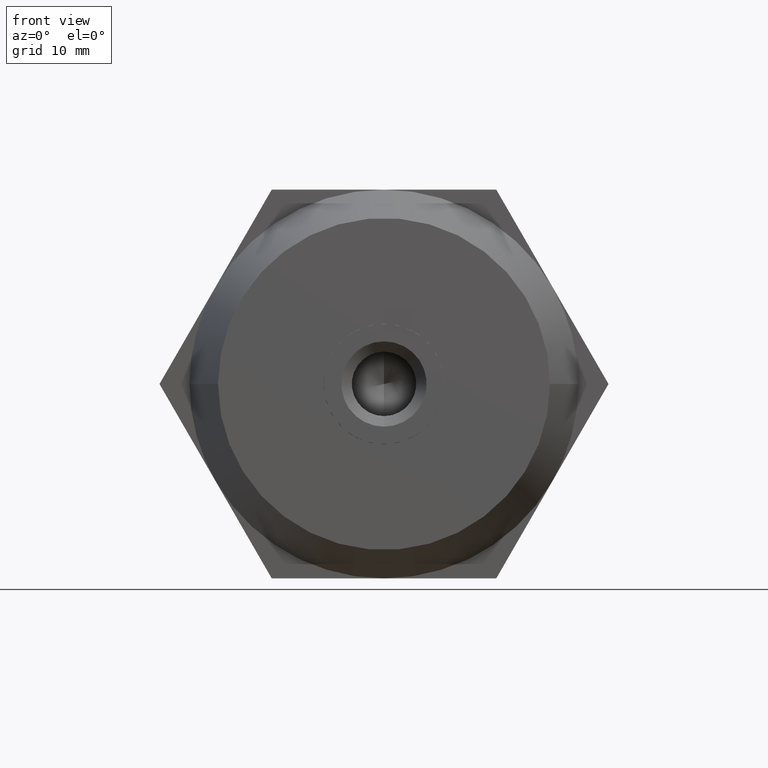
[diagram: clean part render]
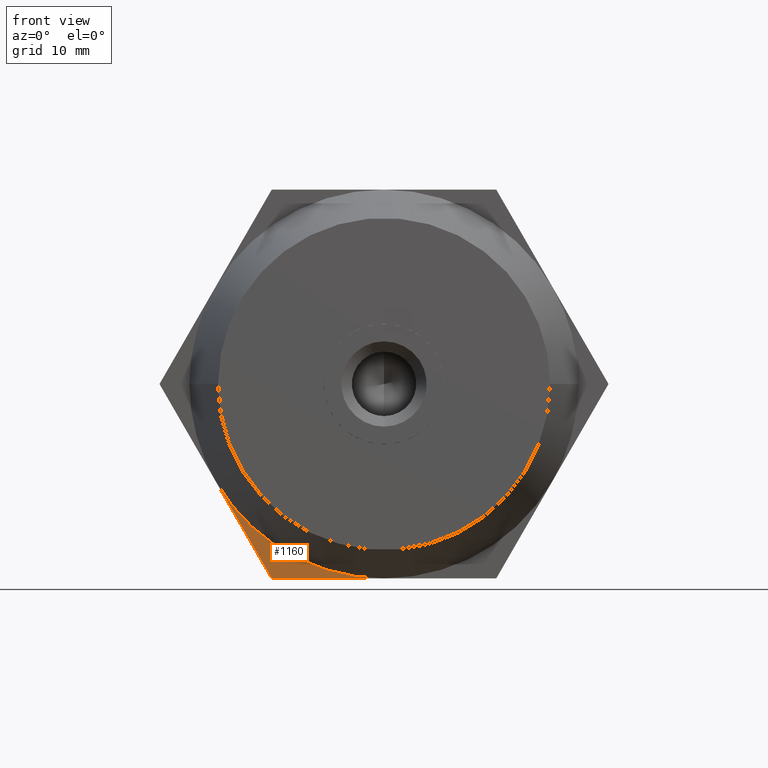
[diagram: same view with one face highlighted and labeled with its STEP entity id]
A machine part, front view. The second image highlights one B-rep face of the part: STEP entity #1160.
In plain terms, the highlighted planar face has unit normal (0, 1, 0).
Its self-contained STEP definition (entity closure, byte-faithful):
#43 = VERTEX_POINT ( 'NONE', #1233 ) ;
#127 = CARTESIAN_POINT ( 'NONE',  ( 0.0000000000000000000, -3.500000000000000000, 0.0000000000000000000 ) ) ;
#343 = VERTEX_POINT ( 'NONE', #2905 ) ;
#402 = PLANE ( 'NONE',  #1163 ) ;
#925 = DIRECTION ( 'NONE',  ( -1.000000000000000000, 0.0000000000000000000, 0.0000000000000000000 ) ) ;
#953 = ORIENTED_EDGE ( 'NONE', *, *, #3488, .F. ) ;
#954 = CARTESIAN_POINT ( 'NONE',  ( -11.83568051838732100, -3.500000000000000000, -20.50000000000000000 ) ) ;
#1054 = VERTEX_POINT ( 'NONE', #954 ) ;
#1160 = ADVANCED_FACE ( 'NONE', ( #1727 ), #402, .F. ) ;
#1163 = AXIS2_PLACEMENT_3D ( 'NONE', #127, #3612, #2177 ) ;
#1233 = CARTESIAN_POINT ( 'NONE',  ( 3.184081677783119800E-015, -3.500000000000000000, -20.50000000000000000 ) ) ;
#1352 = ORIENTED_EDGE ( 'NONE', *, *, #2735, .F. ) ;
#1438 = VECTOR ( 'NONE', #925, 1000.000000000000000 ) ;
#1524 = DIRECTION ( 'NONE',  ( 0.0000000000000000000, 0.0000000000000000000, 1.000000000000000000 ) ) ;
#1727 = FACE_OUTER_BOUND ( 'NONE', #2940, .T. ) ;
#2177 = DIRECTION ( 'NONE',  ( 0.0000000000000000000, 0.0000000000000000000, 1.000000000000000000 ) ) ;
#2380 = ORIENTED_EDGE ( 'NONE', *, *, #3529, .T. ) ;
#2492 = LINE ( 'NONE', #3767, #3773 ) ;
#2692 = DIRECTION ( 'NONE',  ( 0.0000000000000000000, 1.000000000000000000, 0.0000000000000000000 ) ) ;
#2702 = CARTESIAN_POINT ( 'NONE',  ( 11.83568051838732100, -3.500000000000000000, -20.50000000000000000 ) ) ;
#2728 = LINE ( 'NONE', #2702, #1438 ) ;
#2735 = EDGE_CURVE ( 'NONE', #43, #1054, #2728, .T. ) ;
#2905 = CARTESIAN_POINT ( 'NONE',  ( -17.75352077758099900, -3.500000000000000000, -10.25000000000000000 ) ) ;
#2940 = EDGE_LOOP ( 'NONE', ( #1352, #2380, #953 ) ) ;
#3015 = AXIS2_PLACEMENT_3D ( 'NONE', #3578, #2692, #1524 ) ;
#3033 = CIRCLE ( 'NONE', #3015, 20.50000000000000000 ) ;
#3488 = EDGE_CURVE ( 'NONE', #1054, #343, #2492, .T. ) ;
#3529 = EDGE_CURVE ( 'NONE', #43, #343, #3033, .T. ) ;
#3578 = CARTESIAN_POINT ( 'NONE',  ( 3.184081677783119800E-015, -3.500000000000000000, 3.963988323555905400E-016 ) ) ;
#3612 = DIRECTION ( 'NONE',  ( 0.0000000000000000000, 1.000000000000000000, 0.0000000000000000000 ) ) ;
#3767 = CARTESIAN_POINT ( 'NONE',  ( -11.83568051838732100, -3.500000000000000000, -20.50000000000000000 ) ) ;
#3773 = VECTOR ( 'NONE', #3780, 1000.000000000000000 ) ;
#3780 = DIRECTION ( 'NONE',  ( -0.4999999999999998900, 0.0000000000000000000, 0.8660254037844387100 ) ) ;